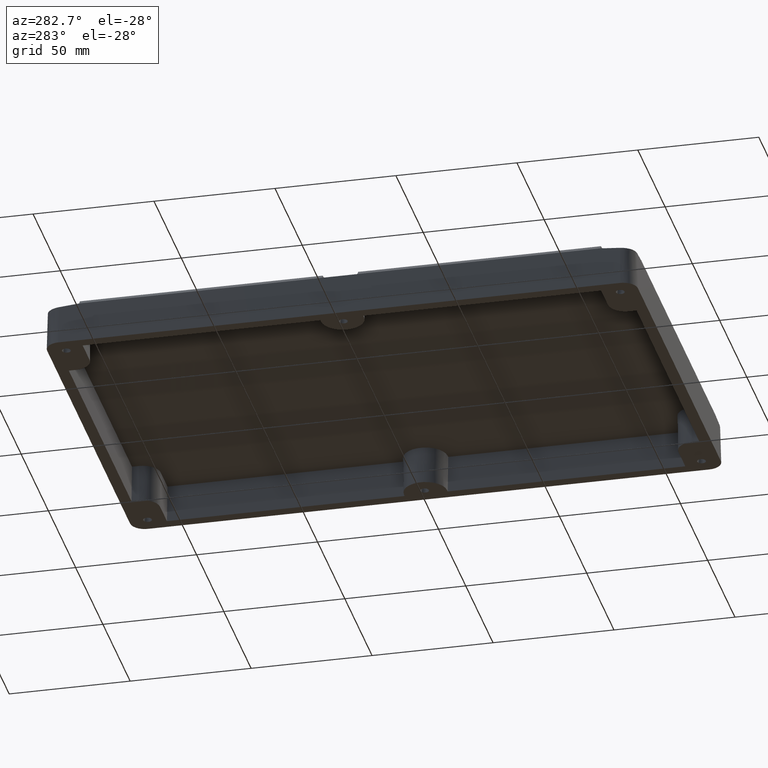
[diagram: clean part render]
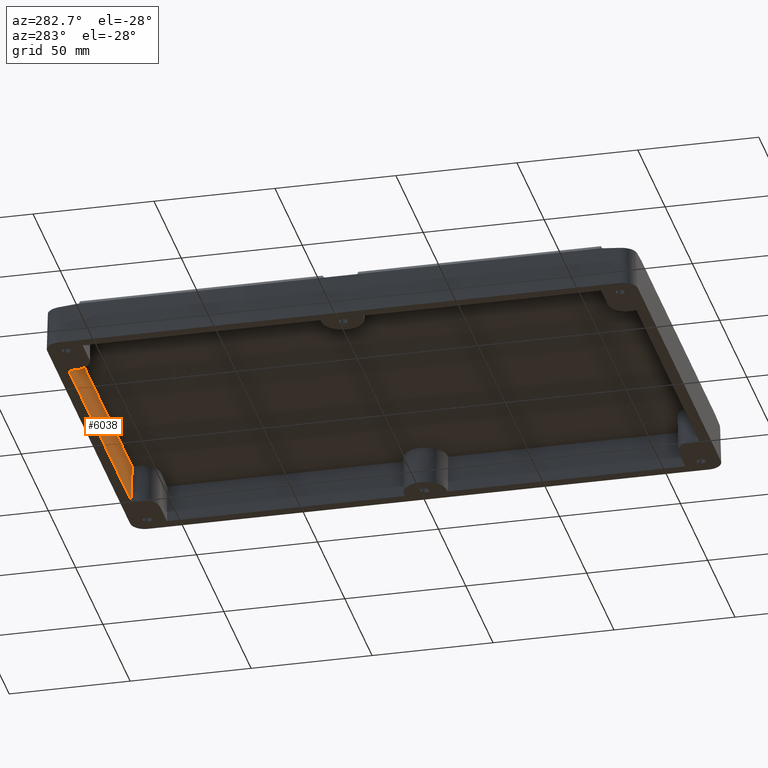
[diagram: same view with one face highlighted and labeled with its STEP entity id]
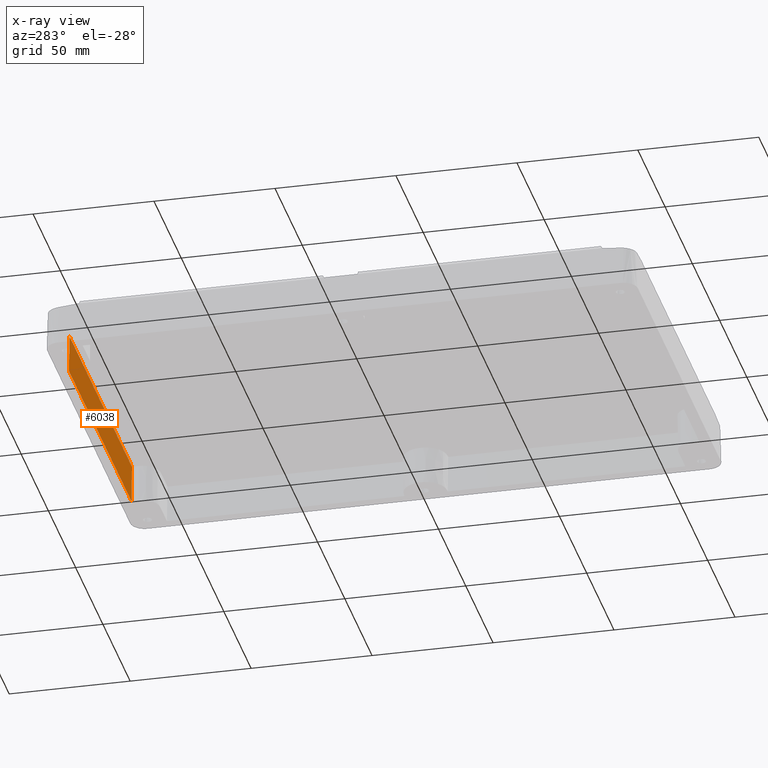
[diagram: x-ray of the same camera — body ghosted, the highlighted face saturated]
A machine part, auxiliary view. The second image highlights one B-rep face of the part: STEP entity #6038.
The next image is the same camera in x-ray: the body ghosted, the highlighted face saturated — about 1% of this face is hidden behind the body in this view.
In plain terms, the highlighted planar face has unit normal (-0, 0.9998, 0.0175).
Its self-contained STEP definition (entity closure, byte-faithful):
#95 = VERTEX_POINT ( 'NONE', #5818 ) ;
#616 = CARTESIAN_POINT ( 'NONE',  ( 57.53508986999998600, 117.3699999999999600, -2.000000000000000000 ) ) ;
#822 = CARTESIAN_POINT ( 'NONE',  ( 57.22788072726335400, 117.0627908572633200, 15.59999999999999800 ) ) ;
#898 = VECTOR ( 'NONE', #1994, 1000.000000000000000 ) ;
#919 = VERTEX_POINT ( 'NONE', #822 ) ;
#1035 = EDGE_LOOP ( 'NONE', ( #2635, #6160, #1699, #3714 ) ) ;
#1109 = DIRECTION ( 'NONE',  ( 0.0000000000000000000, -0.01745240643728354600, 0.9998476951563911600 ) ) ;
#1393 = VECTOR ( 'NONE', #4967, 1000.000000000000000 ) ;
#1424 = EDGE_CURVE ( 'NONE', #919, #4408, #3801, .T. ) ;
#1508 = DIRECTION ( 'NONE',  ( 0.01744974916068272100, 0.01744974916068272500, -0.9996954598818874600 ) ) ;
#1699 = ORIENTED_EDGE ( 'NONE', *, *, #4951, .T. ) ;
#1994 = DIRECTION ( 'NONE',  ( -1.000000000000000000, -1.206028168129327600E-016, 0.0000000000000000000 ) ) ;
#2610 = LINE ( 'NONE', #5454, #1393 ) ;
#2635 = ORIENTED_EDGE ( 'NONE', *, *, #1424, .F. ) ;
#2684 = VECTOR ( 'NONE', #3944, 1000.000000000000200 ) ;
#2862 = EDGE_CURVE ( 'NONE', #919, #95, #4647, .T. ) ;
#2887 = CARTESIAN_POINT ( 'NONE',  ( 57.53508986999998600, 117.3699999999999600, -2.000000000000000000 ) ) ;
#3467 = CARTESIAN_POINT ( 'NONE',  ( -57.53508986999995800, 117.3699999999999500, -2.000000000000000000 ) ) ;
#3714 = ORIENTED_EDGE ( 'NONE', *, *, #4737, .F. ) ;
#3801 = LINE ( 'NONE', #2887, #5057 ) ;
#3916 = DIRECTION ( 'NONE',  ( -1.205844484197792700E-016, 0.9998476951563912700, 0.01745240643728355000 ) ) ;
#3944 = DIRECTION ( 'NONE',  ( -0.01744974916068272100, 0.01744974916068271800, -0.9996954598818874600 ) ) ;
#4227 = FACE_OUTER_BOUND ( 'NONE', #1035, .T. ) ;
#4357 = CARTESIAN_POINT ( 'NONE',  ( 57.53508986999998600, 117.0627908572633200, 15.59999999999999800 ) ) ;
#4408 = VERTEX_POINT ( 'NONE', #5148 ) ;
#4429 = VERTEX_POINT ( 'NONE', #6120 ) ;
#4647 = LINE ( 'NONE', #4357, #898 ) ;
#4737 = EDGE_CURVE ( 'NONE', #4408, #4429, #2610, .T. ) ;
#4951 = EDGE_CURVE ( 'NONE', #95, #4429, #5355, .T. ) ;
#4967 = DIRECTION ( 'NONE',  ( -1.000000000000000000, -1.206028168129327600E-016, -0.0000000000000000000 ) ) ;
#5057 = VECTOR ( 'NONE', #1508, 1000.000000000000200 ) ;
#5148 = CARTESIAN_POINT ( 'NONE',  ( 57.50017974014355100, 117.3350898701435300, -4.336808689942017700E-016 ) ) ;
#5295 = PLANE ( 'NONE',  #5382 ) ;
#5355 = LINE ( 'NONE', #3467, #2684 ) ;
#5382 = AXIS2_PLACEMENT_3D ( 'NONE', #616, #3916, #1109 ) ;
#5454 = CARTESIAN_POINT ( 'NONE',  ( -1.415094234933792400E-014, 117.3350898701435300, 0.0000000000000000000 ) ) ;
#5818 = CARTESIAN_POINT ( 'NONE',  ( -57.22788072726332600, 117.0627908572633100, 15.59999999999999800 ) ) ;
#6038 = ADVANCED_FACE ( 'NONE', ( #4227 ), #5295, .F. ) ;
#6120 = CARTESIAN_POINT ( 'NONE',  ( -57.50017974014352300, 117.3350898701435200, 0.0000000000000000000 ) ) ;
#6160 = ORIENTED_EDGE ( 'NONE', *, *, #2862, .T. ) ;